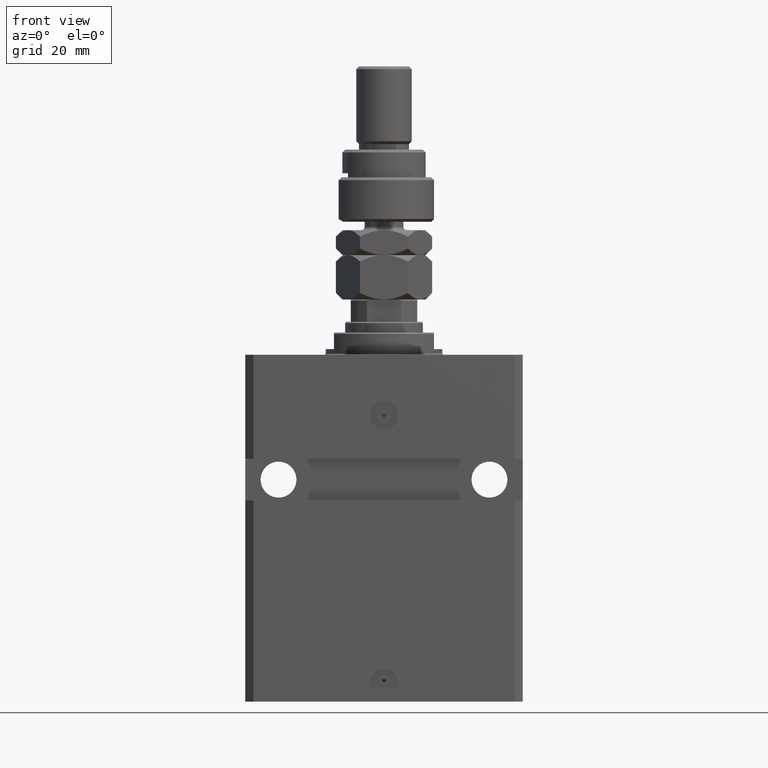
[diagram: clean part render]
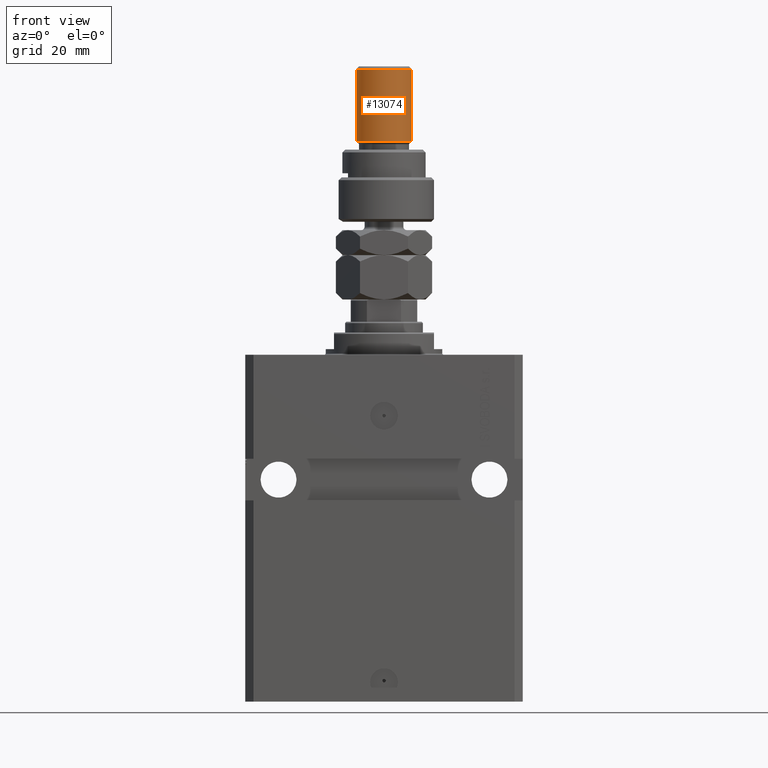
[diagram: same view with one face highlighted and labeled with its STEP entity id]
A machine part, front view. The second image highlights one B-rep face of the part: STEP entity #13074.
In plain terms, the highlighted cylindrical surface (edge-blend (fillet) strip) has radius 10 mm, axis along (-0, -0, -1).
Its self-contained STEP definition (entity closure, byte-faithful):
#463 = VECTOR ( 'NONE', #46822, 1000.000000000000000 ) ;
#1075 = ORIENTED_EDGE ( 'NONE', *, *, #45147, .F. ) ;
#1977 = CARTESIAN_POINT ( 'NONE',  ( 0.000000000000000000, 0.000000000000000000, 29.00000000000000711 ) ) ;
#2110 = DIRECTION ( 'NONE',  ( -0.000000000000000000, -0.000000000000000000, -1.000000000000000000 ) ) ;
#2602 = ORIENTED_EDGE ( 'NONE', *, *, #30560, .T. ) ;
#5605 = AXIS2_PLACEMENT_3D ( 'NONE', #8245, #32211, #16744 ) ;
#6373 = EDGE_LOOP ( 'NONE', ( #1075, #2602, #18249, #46582 ) ) ;
#6374 = DIRECTION ( 'NONE',  ( -0.000000000000000000, -0.000000000000000000, 1.000000000000000000 ) ) ;
#8245 = CARTESIAN_POINT ( 'NONE',  ( 0.000000000000000000, 0.000000000000000000, 54.99999999999998579 ) ) ;
#9007 = CIRCLE ( 'NONE', #34529, 10.00000000000000000 ) ;
#9996 = DIRECTION ( 'NONE',  ( 1.000000000000000000, 0.000000000000000000, 0.000000000000000000 ) ) ;
#11282 = AXIS2_PLACEMENT_3D ( 'NONE', #49441, #14112, #40943 ) ;
#12843 = VERTEX_POINT ( 'NONE', #49248 ) ;
#12928 = CARTESIAN_POINT ( 'NONE',  ( 10.00000000000000000, 1.224646799147353256E-15, 29.00000000000000711 ) ) ;
#13074 = ADVANCED_FACE ( 'NONE', ( #46067 ), #14608, .T. ) ;
#13623 = VERTEX_POINT ( 'NONE', #27410 ) ;
#14112 = DIRECTION ( 'NONE',  ( -0.000000000000000000, -0.000000000000000000, -1.000000000000000000 ) ) ;
#14608 = CYLINDRICAL_SURFACE ( 'NONE', #11282, 10.00000000000000000 ) ;
#14712 = VERTEX_POINT ( 'NONE', #12928 ) ;
#16744 = DIRECTION ( 'NONE',  ( 1.000000000000000000, 0.000000000000000000, 0.000000000000000000 ) ) ;
#17588 = VECTOR ( 'NONE', #2110, 1000.000000000000000 ) ;
#18249 = ORIENTED_EDGE ( 'NONE', *, *, #26508, .T. ) ;
#19478 = CARTESIAN_POINT ( 'NONE',  ( -10.00000000000000000, 0.000000000000000000, 56.00000000000000711 ) ) ;
#25356 = LINE ( 'NONE', #29968, #17588 ) ;
#26508 = EDGE_CURVE ( 'NONE', #13623, #43174, #39604, .T. ) ;
#27410 = CARTESIAN_POINT ( 'NONE',  ( -10.00000000000000000, 0.000000000000000000, 54.99999999999998579 ) ) ;
#27826 = CIRCLE ( 'NONE', #5605, 10.00000000000000000 ) ;
#29968 = CARTESIAN_POINT ( 'NONE',  ( 10.00000000000000000, 1.224646799147353256E-15, 56.00000000000000711 ) ) ;
#30560 = EDGE_CURVE ( 'NONE', #12843, #13623, #27826, .T. ) ;
#32211 = DIRECTION ( 'NONE',  ( 0.000000000000000000, 0.000000000000000000, -1.000000000000000000 ) ) ;
#32443 = CARTESIAN_POINT ( 'NONE',  ( -10.00000000000000000, 0.000000000000000000, 29.00000000000000711 ) ) ;
#34529 = AXIS2_PLACEMENT_3D ( 'NONE', #1977, #6374, #9996 ) ;
#39604 = LINE ( 'NONE', #19478, #463 ) ;
#40943 = DIRECTION ( 'NONE',  ( -1.000000000000000000, 0.000000000000000000, 0.000000000000000000 ) ) ;
#43174 = VERTEX_POINT ( 'NONE', #32443 ) ;
#45147 = EDGE_CURVE ( 'NONE', #12843, #14712, #25356, .T. ) ;
#46067 = FACE_OUTER_BOUND ( 'NONE', #6373, .T. ) ;
#46582 = ORIENTED_EDGE ( 'NONE', *, *, #50552, .T. ) ;
#46822 = DIRECTION ( 'NONE',  ( -0.000000000000000000, -0.000000000000000000, -1.000000000000000000 ) ) ;
#49248 = CARTESIAN_POINT ( 'NONE',  ( 10.00000000000000000, 1.224646799147353256E-15, 54.99999999999998579 ) ) ;
#49441 = CARTESIAN_POINT ( 'NONE',  ( 0.000000000000000000, 0.000000000000000000, 56.00000000000000711 ) ) ;
#50552 = EDGE_CURVE ( 'NONE', #43174, #14712, #9007, .T. ) ;